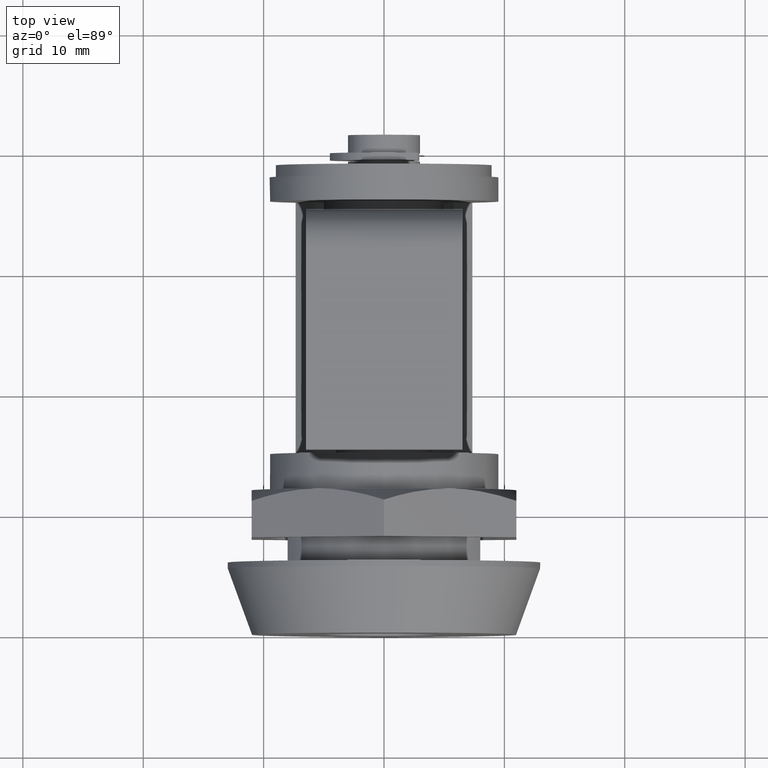
[diagram: clean part render]
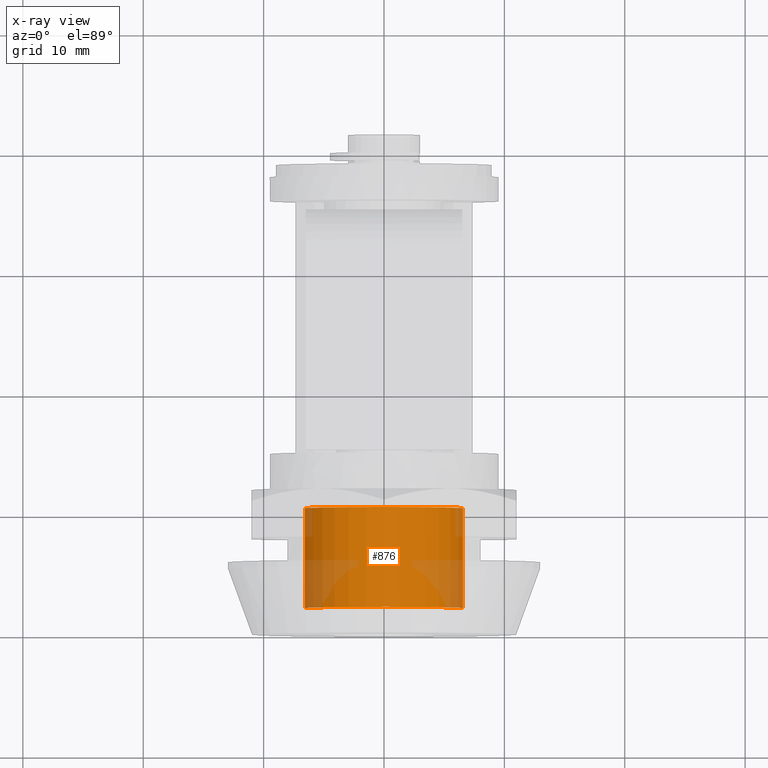
[diagram: x-ray — body ghosted, one internal face saturated and labeled with its STEP entity id]
A machine part, top view, then the same camera in x-ray: the body is ghosted and one INTERNAL B-rep face — a face not visible from any outside direction — is saturated and labeled: STEP entity #876.
In plain terms, the highlighted face is a freeform B-spline surface patch.
Its self-contained STEP definition (entity closure, byte-faithful):
#278=CARTESIAN_POINT('',(2.320678631041643,2.199999999994399,6.178547619910411));
#279=VERTEX_POINT('',#278);
#280=CARTESIAN_POINT('',(0.0,2.200000000000000,6.600000000000000));
#281=VERTEX_POINT('',#280);
#282=CARTESIAN_POINT('',(2.320678631041643,2.199999999994399,6.178547619910411));
#283=CARTESIAN_POINT('',(1.198608748101637,2.200000000000000,6.599999999999999));
#284=CARTESIAN_POINT('',(0.0,2.200000000000000,6.600000000000000));
#292=(BOUNDED_CURVE()B_SPLINE_CURVE(2,(#282,#283,#284),.UNSPECIFIED.,.F.,.U.)B_SPLINE_CURVE_WITH_KNOTS((3,3),(0.440284170896082,0.500000000000000),.UNSPECIFIED.)CURVE()GEOMETRIC_REPRESENTATION_ITEM()RATIONAL_B_SPLINE_CURVE((0.893499554632306,0.930038554398558,1.0))REPRESENTATION_ITEM(''));
#293=EDGE_CURVE('',#279,#281,#292,.T.);
#332=CARTESIAN_POINT('',(-6.587689835431034,2.200000006362701,0.402917545096857));
#333=VERTEX_POINT('',#332);
#339=CARTESIAN_POINT('',(0.0,2.200000000000000,6.600000000000000));
#340=CARTESIAN_POINT('',(-6.208662699991659,2.200000000000000,6.599999999999999));
#341=CARTESIAN_POINT('',(-6.587689835431034,2.200000006362701,0.402917545096857));
#349=(BOUNDED_CURVE()B_SPLINE_CURVE(2,(#339,#340,#341),.UNSPECIFIED.,.F.,.U.)B_SPLINE_CURVE_WITH_KNOTS((3,3),(0.500000000000000,0.739333035984964),.UNSPECIFIED.)CURVE()GEOMETRIC_REPRESENTATION_ITEM()RATIONAL_B_SPLINE_CURVE((1.0,0.719603906887872,0.976072199718530))REPRESENTATION_ITEM(''));
#350=EDGE_CURVE('',#281,#333,#349,.T.);
#377=CARTESIAN_POINT('',(6.553863687077469,2.200000000000048,-0.779019108340656));
#378=VERTEX_POINT('',#377);
#379=CARTESIAN_POINT('',(6.553863687077469,2.200000000000047,-0.779019108340656));
#380=CARTESIAN_POINT('',(6.600000000000000,2.200000000000000,-0.390875733348282));
#381=CARTESIAN_POINT('',(6.600000000000000,2.200000000000000,-2.821493E-016));
#382=CARTESIAN_POINT('',(6.600000000000000,2.200000000000001,4.571223331495774));
#383=CARTESIAN_POINT('',(2.320678631041643,2.199999999994399,6.178547619910410));
#391=(BOUNDED_CURVE()B_SPLINE_CURVE(2,(#379,#380,#381,#382,#383),.UNSPECIFIED.,.F.,.U.)B_SPLINE_CURVE_WITH_KNOTS((3,2,3),(0.229562649907628,0.250000000000000,0.440284170896083),.UNSPECIFIED.)CURVE()GEOMETRIC_REPRESENTATION_ITEM()RATIONAL_B_SPLINE_CURVE((0.956027099923685,0.976056154989711,1.0,0.777068226787989,0.893499554632306))REPRESENTATION_ITEM(''));
#392=EDGE_CURVE('',#378,#279,#391,.T.);
#805=CARTESIAN_POINT('',(6.553862874000199,10.707500000000000,-0.779025948734606));
#806=CARTESIAN_POINT('',(6.576158261960798,10.707500000000003,-0.591457209010653));
#807=CARTESIAN_POINT('',(6.587689669584321,10.707500000000000,-0.402920360930056));
#808=CARTESIAN_POINT('',(6.990610030514379,10.707500000000001,6.184769308654264));
#809=CARTESIAN_POINT('',(0.402920360930056,10.707500000000000,6.587689669584321));
#810=CARTESIAN_POINT('',(-6.184769308654264,10.707500000000001,6.990610030514376));
#811=CARTESIAN_POINT('',(-6.587689669584321,10.707500000000000,0.402920360930056));
#812=CARTESIAN_POINT('',(6.553862874000199,1.987312499999999,-0.779025948734606));
#813=CARTESIAN_POINT('',(6.576158261960798,1.987312499999999,-0.591457209010653));
#814=CARTESIAN_POINT('',(6.587689669584321,1.987312499999998,-0.402920360930056));
#815=CARTESIAN_POINT('',(6.990610030514379,1.987312499999997,6.184769308654264));
#816=CARTESIAN_POINT('',(0.402920360930056,1.987312499999998,6.587689669584321));
#817=CARTESIAN_POINT('',(-6.184769308654264,1.987312499999997,6.990610030514376));
#818=CARTESIAN_POINT('',(-6.587689669584321,1.987312499999998,0.402920360930056));
#826=(BOUNDED_SURFACE()B_SPLINE_SURFACE(2,1,((#805,#812),(#806,#813),(#807,#814),(#808,#815),(#809,#816),(#810,#817),(#811,#818)),.UNSPECIFIED.,.F.,.F.,.U.)B_SPLINE_SURFACE_WITH_KNOTS((3,2,2,3),(2,2),(0.0,0.437409521865989,11.372647568515699,22.307885615165400),(0.0,8.720187500000003),.UNSPECIFIED.)GEOMETRIC_REPRESENTATION_ITEM()RATIONAL_B_SPLINE_SURFACE(((0.977505800795127,0.977505800795127),(0.988284271247462,0.988284271247462),(1.0,1.0),(0.707106781186548,0.707106781186548),(1.0,1.0),(0.707106781186548,0.707106781186548),(1.0,1.0)))REPRESENTATION_ITEM('')SURFACE());
#827=ORIENTED_EDGE('',*,*,#392,.T.);
#828=ORIENTED_EDGE('',*,*,#293,.T.);
#829=ORIENTED_EDGE('',*,*,#350,.T.);
#830=CARTESIAN_POINT('',(-6.587690009724922,10.500000000000000,0.402914799603354));
#831=VERTEX_POINT('',#830);
#832=CARTESIAN_POINT('',(-6.587690009724922,10.500000000000000,0.402914799603354));
#833=CARTESIAN_POINT('',(-6.587689835431034,2.200000006362701,0.402917545096857));
#834=QUASI_UNIFORM_CURVE('',1,(#832,#833),.UNSPECIFIED.,.F.,.U.);
#835=EDGE_CURVE('',#831,#333,#834,.T.);
#836=ORIENTED_EDGE('',*,*,#835,.F.);
#837=CARTESIAN_POINT('',(0.0,10.500000000000000,6.600000000000000));
#838=VERTEX_POINT('',#837);
#839=CARTESIAN_POINT('',(0.0,10.500000000000000,6.600000000000000));
#840=CARTESIAN_POINT('',(-6.208665292723785,10.500000000000000,6.600000000000000));
#841=CARTESIAN_POINT('',(-6.587690009724922,10.499999999999996,0.402914799603354));
#849=(BOUNDED_CURVE()B_SPLINE_CURVE(2,(#839,#840,#841),.UNSPECIFIED.,.F.,.U.)B_SPLINE_CURVE_WITH_KNOTS((3,3),(0.500000000000000,0.739333107905960),.UNSPECIFIED.)CURVE()GEOMETRIC_REPRESENTATION_ITEM()RATIONAL_B_SPLINE_CURVE((1.0,0.719603822627184,0.976072353859063))REPRESENTATION_ITEM(''));
#850=EDGE_CURVE('',#838,#831,#849,.T.);
#851=ORIENTED_EDGE('',*,*,#850,.F.);
#852=CARTESIAN_POINT('',(6.553863677055987,10.500000000000000,-0.779019192651807));
#853=VERTEX_POINT('',#852);
#854=CARTESIAN_POINT('',(6.553863677055987,10.500000000000004,-0.779019192651807));
#855=CARTESIAN_POINT('',(6.600000000000000,10.500000000000005,-0.390875775949508));
#856=CARTESIAN_POINT('',(6.600000000000000,10.500000000000000,-2.821493E-016));
#857=CARTESIAN_POINT('',(6.599999999999999,10.500000000000002,6.599999999999999));
#858=CARTESIAN_POINT('',(0.0,10.500000000000000,6.600000000000000));
#866=(BOUNDED_CURVE()B_SPLINE_CURVE(2,(#854,#855,#856,#857,#858),.UNSPECIFIED.,.F.,.U.)B_SPLINE_CURVE_WITH_KNOTS((3,2,3),(0.229562647733512,0.250000000000000,0.500000000000000),.UNSPECIFIED.)CURVE()GEOMETRIC_REPRESENTATION_ITEM()RATIONAL_B_SPLINE_CURVE((0.956027095662321,0.976056152442576,1.0,0.707106781186548,1.0))REPRESENTATION_ITEM(''));
#867=EDGE_CURVE('',#853,#838,#866,.T.);
#868=ORIENTED_EDGE('',*,*,#867,.F.);
#869=CARTESIAN_POINT('',(6.553863677055987,10.500000000000000,-0.779019192651807));
#870=CARTESIAN_POINT('',(6.553863687077469,2.200000000000048,-0.779019108340656));
#871=QUASI_UNIFORM_CURVE('',1,(#869,#870),.UNSPECIFIED.,.F.,.U.);
#872=EDGE_CURVE('',#853,#378,#871,.T.);
#873=ORIENTED_EDGE('',*,*,#872,.T.);
#874=EDGE_LOOP('',(#827,#828,#829,#836,#851,#868,#873));
#875=FACE_OUTER_BOUND('',#874,.T.);
#876=ADVANCED_FACE('',(#875),#826,.F.);